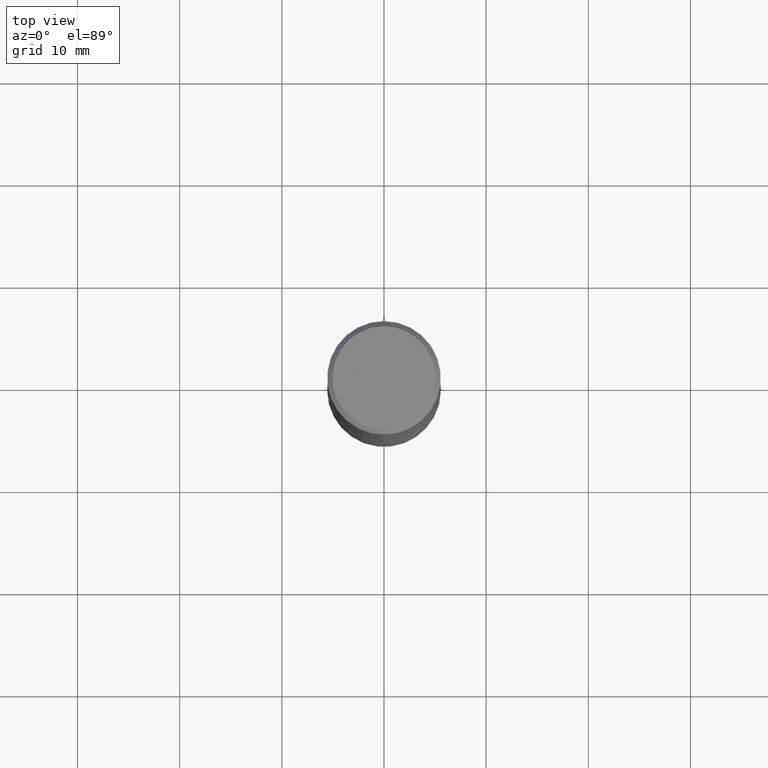
[diagram: clean part render]
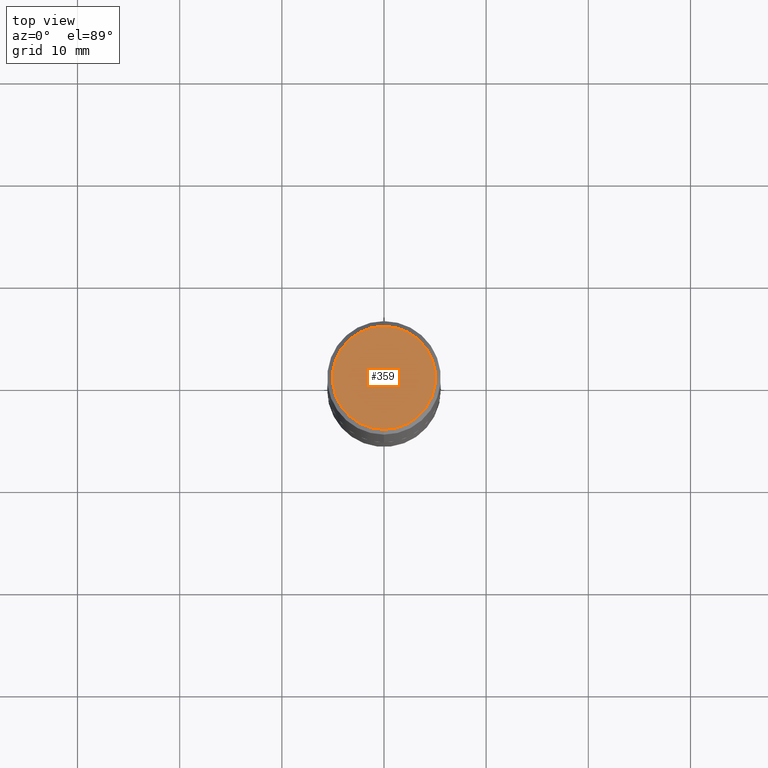
[diagram: same view with one face highlighted and labeled with its STEP entity id]
A machine part, top view. The second image highlights one B-rep face of the part: STEP entity #359.
In plain terms, the highlighted planar face has unit normal (0, -0, -1).
Its self-contained STEP definition (entity closure, byte-faithful):
#17 = CARTESIAN_POINT ( 'NONE',  ( 1.457693458967008136E-15, 0.1987500000000000377, -7.750336534069830899E-16 ) ) ;
#74 = DIRECTION ( 'NONE',  ( 6.982962677686265922E-15, 1.000000000000000000, -3.490920253892384747E-15 ) ) ;
#94 = CARTESIAN_POINT ( 'NONE',  ( 1.986362963668964769E-45, -2.835089895932280232E-31, -8.121325294587144203E-17 ) ) ;
#95 = CIRCLE ( 'NONE', #295, 0.1987500000000000377 ) ;
#97 = DIRECTION ( 'NONE',  ( -2.445860609712153688E-29, 3.490920253892385141E-15, 1.000000000000000000 ) ) ;
#100 = ORIENTED_EDGE ( 'NONE', *, *, #263, .T. ) ;
#109 = VERTEX_POINT ( 'NONE', #371 ) ;
#111 = ORIENTED_EDGE ( 'NONE', *, *, #225, .T. ) ;
#121 = AXIS2_PLACEMENT_3D ( 'NONE', #168, #236, #74 ) ;
#141 = VERTEX_POINT ( 'NONE', #17 ) ;
#156 = DIRECTION ( 'NONE',  ( -6.982962677686265922E-15, -1.000000000000000000, 3.490920253892385141E-15 ) ) ;
#168 = CARTESIAN_POINT ( 'NONE',  ( 1.387863832190145627E-15, 0.1987500000000000377, -7.344270269340474490E-16 ) ) ;
#225 = EDGE_CURVE ( 'NONE', #141, #109, #95, .T. ) ;
#236 = DIRECTION ( 'NONE',  ( 2.445860609712153688E-29, -3.490920253892384747E-15, -1.000000000000000000 ) ) ;
#253 = DIRECTION ( 'NONE',  ( -2.445860609712153688E-29, 3.490920253892385141E-15, 1.000000000000000000 ) ) ;
#261 = FACE_OUTER_BOUND ( 'NONE', #276, .T. ) ;
#263 = EDGE_CURVE ( 'NONE', #109, #141, #309, .T. ) ;
#276 = EDGE_LOOP ( 'NONE', ( #111, #100 ) ) ;
#295 = AXIS2_PLACEMENT_3D ( 'NONE', #94, #253, #156 ) ;
#309 = CIRCLE ( 'NONE', #349, 0.1987500000000000377 ) ;
#342 = DIRECTION ( 'NONE',  ( -6.982962677686265922E-15, -1.000000000000000000, 3.490920253892385141E-15 ) ) ;
#349 = AXIS2_PLACEMENT_3D ( 'NONE', #381, #97, #342 ) ;
#359 = ADVANCED_FACE ( 'NONE', ( #261 ), #387, .F. ) ;
#371 = CARTESIAN_POINT ( 'NONE',  ( -1.432128957034806803E-15, -0.1987500000000000377, 6.126071475152403291E-16 ) ) ;
#381 = CARTESIAN_POINT ( 'NONE',  ( 1.986362963668964769E-45, -2.835089895932280232E-31, -8.121325294587144203E-17 ) ) ;
#387 = PLANE ( 'NONE',  #121 ) ;